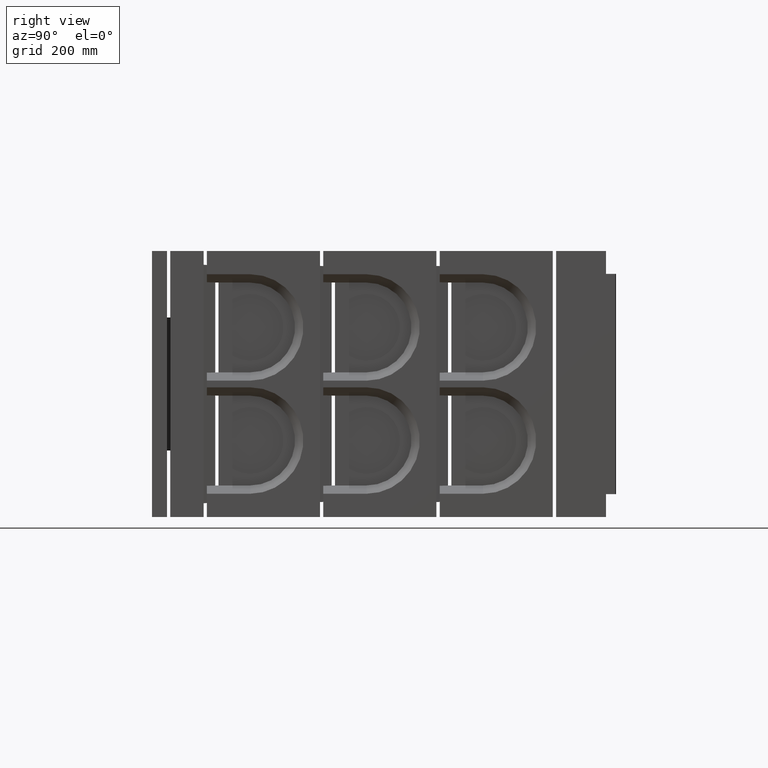
[diagram: clean part render]
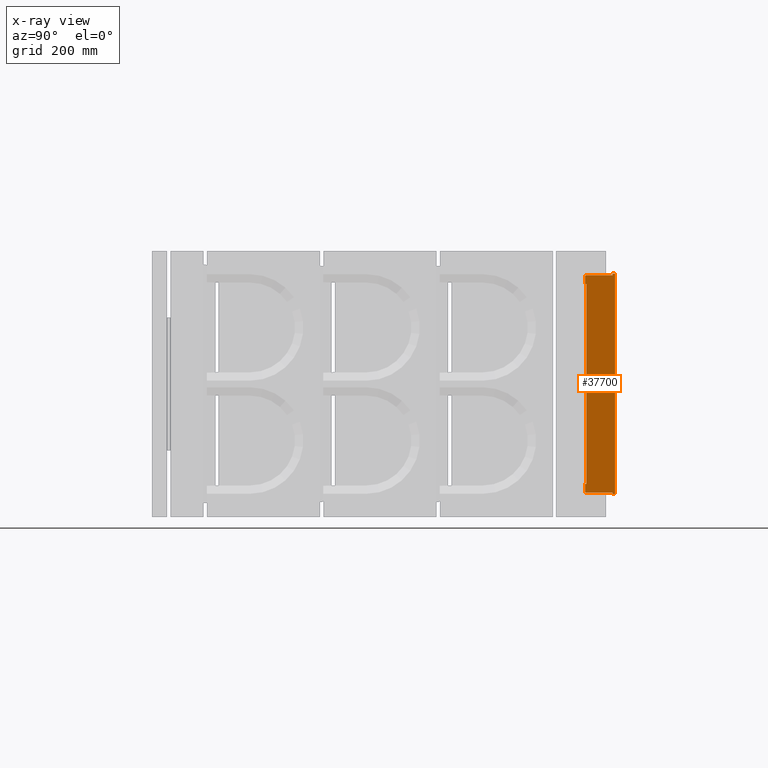
[diagram: x-ray — body ghosted, one internal face saturated and labeled with its STEP entity id]
A machine part, right view, then the same camera in x-ray: the body is ghosted and one INTERNAL B-rep face — a face not visible from any outside direction — is saturated and labeled: STEP entity #37700.
In plain terms, the highlighted planar face has unit normal (1, -0, -0).
Its self-contained STEP definition (entity closure, byte-faithful):
#38 = CARTESIAN_POINT ( 'NONE',  ( 651.4999999999997726, 1305.999999999999545, 323.0000000000000000 ) ) ;
#755 = ORIENTED_EDGE ( 'NONE', *, *, #25071, .T. ) ;
#807 = CARTESIAN_POINT ( 'NONE',  ( 651.4999999999997726, 1391.999999999999773, -331.0000000000000000 ) ) ;
#1214 = ORIENTED_EDGE ( 'NONE', *, *, #38752, .T. ) ;
#1240 = CARTESIAN_POINT ( 'NONE',  ( 651.4999999999997726, 1301.999999999999545, -326.9999999999999432 ) ) ;
#1320 = LINE ( 'NONE', #1240, #43976 ) ;
#1512 = CARTESIAN_POINT ( 'NONE',  ( 651.4999999999997726, 1306.999999999999545, 300.1000000000000227 ) ) ;
#1542 = DIRECTION ( 'NONE',  ( 1.734723475976807403E-17, 1.612196539011887280E-17, 1.000000000000000000 ) ) ;
#2006 = DIRECTION ( 'NONE',  ( -1.734723475976806170E-17, 1.612196539011926723E-17, -1.000000000000000000 ) ) ;
#2626 = LINE ( 'NONE', #8399, #17269 ) ;
#3003 = VERTEX_POINT ( 'NONE', #9788 ) ;
#3372 = ORIENTED_EDGE ( 'NONE', *, *, #27079, .T. ) ;
#3617 = ORIENTED_EDGE ( 'NONE', *, *, #17059, .F. ) ;
#3740 = VERTEX_POINT ( 'NONE', #13786 ) ;
#3829 = VECTOR ( 'NONE', #12582, 1000.000000000000000 ) ;
#3971 = CARTESIAN_POINT ( 'NONE',  ( 651.4999999999997726, 1306.999999999999545, -331.0000000000000000 ) ) ;
#4062 = LINE ( 'NONE', #18854, #39640 ) ;
#4103 = VERTEX_POINT ( 'NONE', #8896 ) ;
#4161 = DIRECTION ( 'NONE',  ( 1.734723475976806786E-17, -1.972152263052529076E-31, 1.000000000000000000 ) ) ;
#4256 = ORIENTED_EDGE ( 'NONE', *, *, #34261, .T. ) ;
#4344 = CARTESIAN_POINT ( 'NONE',  ( 651.4999999999997726, 1305.999999999999545, -300.0000000000000568 ) ) ;
#4952 = LINE ( 'NONE', #44100, #41621 ) ;
#5478 = CARTESIAN_POINT ( 'NONE',  ( 651.4999999999997726, 1305.999999999999545, -331.0000000000000000 ) ) ;
#5720 = ORIENTED_EDGE ( 'NONE', *, *, #35336, .T. ) ;
#6098 = ORIENTED_EDGE ( 'NONE', *, *, #6609, .F. ) ;
#6609 = EDGE_CURVE ( 'NONE', #22088, #38343, #33478, .T. ) ;
#6866 = CARTESIAN_POINT ( 'NONE',  ( 651.4999999999997726, 1391.999999999999773, -331.0000000000000000 ) ) ;
#6999 = DIRECTION ( 'NONE',  ( 0.0000000000000000000, 0.0000000000000000000, -1.000000000000000000 ) ) ;
#7995 = ORIENTED_EDGE ( 'NONE', *, *, #35072, .F. ) ;
#8399 = CARTESIAN_POINT ( 'NONE',  ( 651.4999999999997726, 1301.999999999999545, 326.9999999999999432 ) ) ;
#8896 = CARTESIAN_POINT ( 'NONE',  ( 651.4999999999997726, 1301.999999999999545, 300.1000000000000227 ) ) ;
#9413 = VERTEX_POINT ( 'NONE', #34068 ) ;
#9619 = VECTOR ( 'NONE', #43046, 1000.000000000000000 ) ;
#9670 = EDGE_CURVE ( 'NONE', #3003, #39727, #4062, .T. ) ;
#9727 = VECTOR ( 'NONE', #21696, 1000.000000000000000 ) ;
#9788 = CARTESIAN_POINT ( 'NONE',  ( 651.4999999999997726, 1384.999999999999545, 331.0000000000000000 ) ) ;
#9959 = EDGE_CURVE ( 'NONE', #23557, #22237, #1320, .T. ) ;
#10235 = ORIENTED_EDGE ( 'NONE', *, *, #9959, .F. ) ;
#10939 = CARTESIAN_POINT ( 'NONE',  ( 651.4999999999997726, 1303.999999999999545, -327.0000000000000000 ) ) ;
#11446 = EDGE_CURVE ( 'NONE', #4103, #33457, #13070, .T. ) ;
#11867 = VERTEX_POINT ( 'NONE', #20082 ) ;
#11969 = CARTESIAN_POINT ( 'NONE',  ( 651.4999999999997726, 1384.999999999999545, -331.0000000000000000 ) ) ;
#12220 = CIRCLE ( 'NONE', #14294, 4.000000000000003553 ) ;
#12582 = DIRECTION ( 'NONE',  ( 4.440892098500627148E-16, 1.000000000000000000, 1.895115065277039642E-31 ) ) ;
#12626 = LINE ( 'NONE', #29134, #36832 ) ;
#13070 = LINE ( 'NONE', #1512, #3829 ) ;
#13468 = CARTESIAN_POINT ( 'NONE',  ( 651.4999999999997726, 1303.999999999999545, -300.0000000000000568 ) ) ;
#13600 = CARTESIAN_POINT ( 'NONE',  ( 651.4999999999997726, 1391.999999999999773, 331.0000000000000000 ) ) ;
#13786 = CARTESIAN_POINT ( 'NONE',  ( 651.4999999999997726, 1301.999999999999545, 323.0000000000000000 ) ) ;
#13905 = DIRECTION ( 'NONE',  ( 0.0000000000000000000, 0.0000000000000000000, -1.000000000000000000 ) ) ;
#14105 = CARTESIAN_POINT ( 'NONE',  ( 651.4999999999997726, 1384.999999999999545, 327.0000000000000000 ) ) ;
#14130 = CARTESIAN_POINT ( 'NONE',  ( 651.4999999999997726, 1305.999999999999545, -323.0000000000000000 ) ) ;
#14294 = AXIS2_PLACEMENT_3D ( 'NONE', #38, #41685, #13905 ) ;
#14715 = DIRECTION ( 'NONE',  ( 4.440892098500627148E-16, 1.000000000000000000, 1.895115065277039642E-31 ) ) ;
#14761 = DIRECTION ( 'NONE',  ( 1.734723475976806786E-17, -1.972152263052529076E-31, 1.000000000000000000 ) ) ;
#14879 = CARTESIAN_POINT ( 'NONE',  ( 651.4999999999997726, 1305.999999999999545, 300.0000000000000000 ) ) ;
#15380 = DIRECTION ( 'NONE',  ( 4.440892098500627148E-16, 1.000000000000000000, 1.895115065277039642E-31 ) ) ;
#15901 = VERTEX_POINT ( 'NONE', #29099 ) ;
#16566 = VECTOR ( 'NONE', #21517, 1000.000000000000000 ) ;
#16644 = VERTEX_POINT ( 'NONE', #26965 ) ;
#16736 = AXIS2_PLACEMENT_3D ( 'NONE', #16942, #41004, #20452 ) ;
#16942 = CARTESIAN_POINT ( 'NONE',  ( 651.4999999999997726, 1303.999999999999545, -331.0000000000000000 ) ) ;
#17059 = EDGE_CURVE ( 'NONE', #36430, #3003, #12626, .T. ) ;
#17264 = ORIENTED_EDGE ( 'NONE', *, *, #30322, .T. ) ;
#17269 = VECTOR ( 'NONE', #2006, 1000.000000000000000 ) ;
#17386 = EDGE_CURVE ( 'NONE', #36430, #16644, #4952, .T. ) ;
#18342 = EDGE_CURVE ( 'NONE', #42918, #22088, #42601, .T. ) ;
#18488 = ORIENTED_EDGE ( 'NONE', *, *, #11446, .T. ) ;
#18546 = ORIENTED_EDGE ( 'NONE', *, *, #42164, .F. ) ;
#18854 = CARTESIAN_POINT ( 'NONE',  ( 651.4999999999997726, 1303.999999999999545, 331.0000000000000000 ) ) ;
#19570 = DIRECTION ( 'NONE',  ( 4.440892098500627148E-16, 1.000000000000000000, 1.895115065277039642E-31 ) ) ;
#20082 = CARTESIAN_POINT ( 'NONE',  ( 651.4999999999997726, 1305.999999999999545, -327.0000000000000000 ) ) ;
#20374 = LINE ( 'NONE', #21063, #37556 ) ;
#20452 = DIRECTION ( 'NONE',  ( -1.734723475976806786E-17, 1.972152263052529076E-31, -1.000000000000000000 ) ) ;
#21063 = CARTESIAN_POINT ( 'NONE',  ( 651.4999999999997726, 1306.999999999999773, -331.0000000000000000 ) ) ;
#21138 = EDGE_CURVE ( 'NONE', #9413, #24549, #39782, .T. ) ;
#21376 = VECTOR ( 'NONE', #14715, 1000.000000000000000 ) ;
#21517 = DIRECTION ( 'NONE',  ( -4.440892098500627148E-16, -1.000000000000000000, -1.895115065277039642E-31 ) ) ;
#21696 = DIRECTION ( 'NONE',  ( -4.440892098500627148E-16, -1.000000000000000000, -1.895115065277039642E-31 ) ) ;
#22088 = VERTEX_POINT ( 'NONE', #31709 ) ;
#22237 = VERTEX_POINT ( 'NONE', #28662 ) ;
#23399 = CARTESIAN_POINT ( 'NONE',  ( 651.4999999999997726, 1384.999999999999545, -331.0000000000000000 ) ) ;
#23557 = VERTEX_POINT ( 'NONE', #42250 ) ;
#23944 = VECTOR ( 'NONE', #36829, 1000.000000000000000 ) ;
#24064 = ORIENTED_EDGE ( 'NONE', *, *, #18342, .F. ) ;
#24549 = VERTEX_POINT ( 'NONE', #23399 ) ;
#25071 = EDGE_CURVE ( 'NONE', #23557, #11867, #29532, .T. ) ;
#25183 = AXIS2_PLACEMENT_3D ( 'NONE', #14130, #41348, #6999 ) ;
#25314 = FACE_OUTER_BOUND ( 'NONE', #32113, .T. ) ;
#25912 = LINE ( 'NONE', #10939, #9727 ) ;
#26009 = EDGE_CURVE ( 'NONE', #24549, #44183, #27767, .T. ) ;
#26711 = LINE ( 'NONE', #807, #40174 ) ;
#26965 = CARTESIAN_POINT ( 'NONE',  ( 651.4999999999997726, 1305.999999999999545, 327.0000000000000000 ) ) ;
#27079 = EDGE_CURVE ( 'NONE', #16644, #3740, #12220, .T. ) ;
#27767 = LINE ( 'NONE', #42548, #21376 ) ;
#28662 = CARTESIAN_POINT ( 'NONE',  ( 651.4999999999997726, 1301.999999999999545, -300.1000000000000227 ) ) ;
#29099 = CARTESIAN_POINT ( 'NONE',  ( 651.4999999999997726, 1306.999999999999545, 300.0000000000000568 ) ) ;
#29134 = CARTESIAN_POINT ( 'NONE',  ( 651.4999999999997726, 1384.999999999999545, -331.0000000000000000 ) ) ;
#29152 = VECTOR ( 'NONE', #37649, 1000.000000000000000 ) ;
#29532 = CIRCLE ( 'NONE', #25183, 4.000000000000003553 ) ;
#29627 = ORIENTED_EDGE ( 'NONE', *, *, #9670, .F. ) ;
#30008 = VECTOR ( 'NONE', #19570, 1000.000000000000000 ) ;
#30322 = EDGE_CURVE ( 'NONE', #15901, #40443, #41859, .T. ) ;
#30913 = LINE ( 'NONE', #5478, #23944 ) ;
#31709 = CARTESIAN_POINT ( 'NONE',  ( 651.4999999999997726, 1306.999999999999545, -300.0000000000000568 ) ) ;
#31710 = ORIENTED_EDGE ( 'NONE', *, *, #26009, .T. ) ;
#32113 = EDGE_LOOP ( 'NONE', ( #29627, #3617, #35928, #3372, #4256, #18488, #5720, #17264, #18546, #6098, #24064, #7995, #10235, #755, #42009, #40125, #31710, #1214 ) ) ;
#33368 = DIRECTION ( 'NONE',  ( -4.440892098500627148E-16, -1.000000000000000000, -1.895115065277039642E-31 ) ) ;
#33421 = VECTOR ( 'NONE', #34866, 1000.000000000000000 ) ;
#33457 = VERTEX_POINT ( 'NONE', #38867 ) ;
#33478 = LINE ( 'NONE', #13468, #29152 ) ;
#34068 = CARTESIAN_POINT ( 'NONE',  ( 651.4999999999997726, 1384.999999999999545, -327.0000000000000000 ) ) ;
#34214 = PLANE ( 'NONE',  #16736 ) ;
#34261 = EDGE_CURVE ( 'NONE', #3740, #4103, #2626, .T. ) ;
#34866 = DIRECTION ( 'NONE',  ( 1.734723475976812641E-17, 1.284980352575412206E-16, 1.000000000000000000 ) ) ;
#35072 = EDGE_CURVE ( 'NONE', #22237, #42918, #35934, .T. ) ;
#35336 = EDGE_CURVE ( 'NONE', #33457, #15901, #20374, .T. ) ;
#35928 = ORIENTED_EDGE ( 'NONE', *, *, #17386, .T. ) ;
#35934 = LINE ( 'NONE', #43498, #30008 ) ;
#36430 = VERTEX_POINT ( 'NONE', #14105 ) ;
#36829 = DIRECTION ( 'NONE',  ( 1.734723475976806786E-17, -1.972152263052529076E-31, 1.000000000000000000 ) ) ;
#36832 = VECTOR ( 'NONE', #14761, 1000.000000000000000 ) ;
#37556 = VECTOR ( 'NONE', #41765, 1000.000000000000000 ) ;
#37649 = DIRECTION ( 'NONE',  ( -4.440892098500627148E-16, -1.000000000000000000, -1.895115065277039642E-31 ) ) ;
#37700 = ADVANCED_FACE ( 'NONE', ( #25314 ), #34214, .T. ) ;
#38343 = VERTEX_POINT ( 'NONE', #4344 ) ;
#38752 = EDGE_CURVE ( 'NONE', #44183, #39727, #26711, .T. ) ;
#38867 = CARTESIAN_POINT ( 'NONE',  ( 651.4999999999997726, 1306.999999999999545, 300.0999999999999659 ) ) ;
#39640 = VECTOR ( 'NONE', #15380, 1000.000000000000000 ) ;
#39727 = VERTEX_POINT ( 'NONE', #13600 ) ;
#39782 = LINE ( 'NONE', #11969, #9619 ) ;
#39888 = CARTESIAN_POINT ( 'NONE',  ( 651.4999999999997726, 1306.999999999999545, -300.1000000000000227 ) ) ;
#40125 = ORIENTED_EDGE ( 'NONE', *, *, #21138, .T. ) ;
#40174 = VECTOR ( 'NONE', #4161, 1000.000000000000000 ) ;
#40443 = VERTEX_POINT ( 'NONE', #14879 ) ;
#41004 = DIRECTION ( 'NONE',  ( 1.000000000000000000, -4.440892098500624190E-16, -1.734723475976806786E-17 ) ) ;
#41348 = DIRECTION ( 'NONE',  ( 1.000000000000000000, -4.440892098500624190E-16, -1.734723475976806786E-17 ) ) ;
#41621 = VECTOR ( 'NONE', #33368, 1000.000000000000000 ) ;
#41685 = DIRECTION ( 'NONE',  ( 1.000000000000000000, -4.440892098500624190E-16, -1.734723475976806786E-17 ) ) ;
#41765 = DIRECTION ( 'NONE',  ( -1.734723475976800931E-17, 1.284980352575416150E-16, -1.000000000000000000 ) ) ;
#41859 = LINE ( 'NONE', #42093, #16566 ) ;
#42009 = ORIENTED_EDGE ( 'NONE', *, *, #43261, .F. ) ;
#42093 = CARTESIAN_POINT ( 'NONE',  ( 651.4999999999997726, 1303.999999999999545, 300.0000000000000000 ) ) ;
#42164 = EDGE_CURVE ( 'NONE', #38343, #40443, #30913, .T. ) ;
#42250 = CARTESIAN_POINT ( 'NONE',  ( 651.4999999999997726, 1301.999999999999545, -323.0000000000000000 ) ) ;
#42548 = CARTESIAN_POINT ( 'NONE',  ( 651.4999999999997726, 1303.999999999999545, -331.0000000000000000 ) ) ;
#42601 = LINE ( 'NONE', #3971, #33421 ) ;
#42918 = VERTEX_POINT ( 'NONE', #39888 ) ;
#43046 = DIRECTION ( 'NONE',  ( -1.734723475976806786E-17, 1.972152263052529076E-31, -1.000000000000000000 ) ) ;
#43261 = EDGE_CURVE ( 'NONE', #9413, #11867, #25912, .T. ) ;
#43498 = CARTESIAN_POINT ( 'NONE',  ( 651.4999999999997726, 1306.999999999999545, -300.1000000000000227 ) ) ;
#43976 = VECTOR ( 'NONE', #1542, 1000.000000000000000 ) ;
#44100 = CARTESIAN_POINT ( 'NONE',  ( 651.4999999999997726, 1303.999999999999545, 327.0000000000000000 ) ) ;
#44183 = VERTEX_POINT ( 'NONE', #6866 ) ;